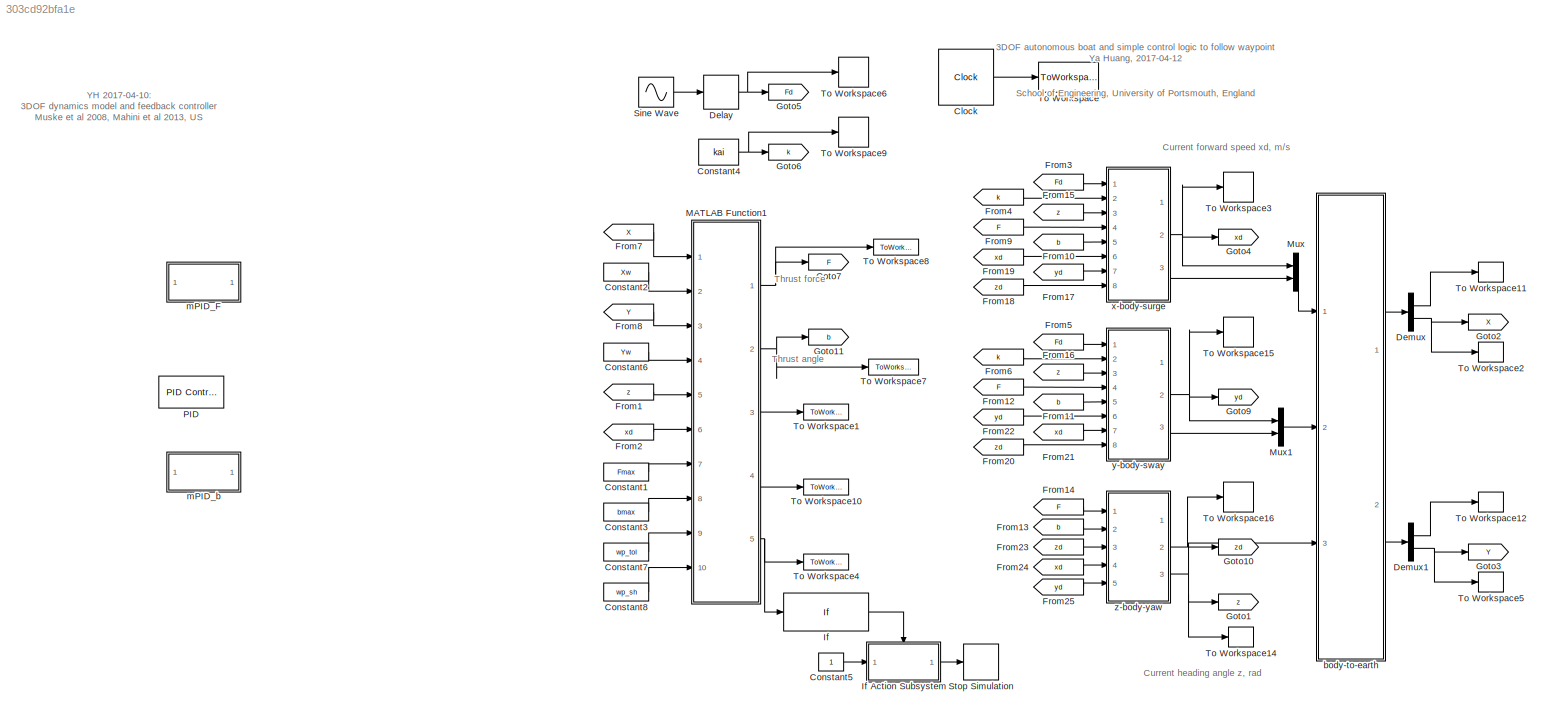
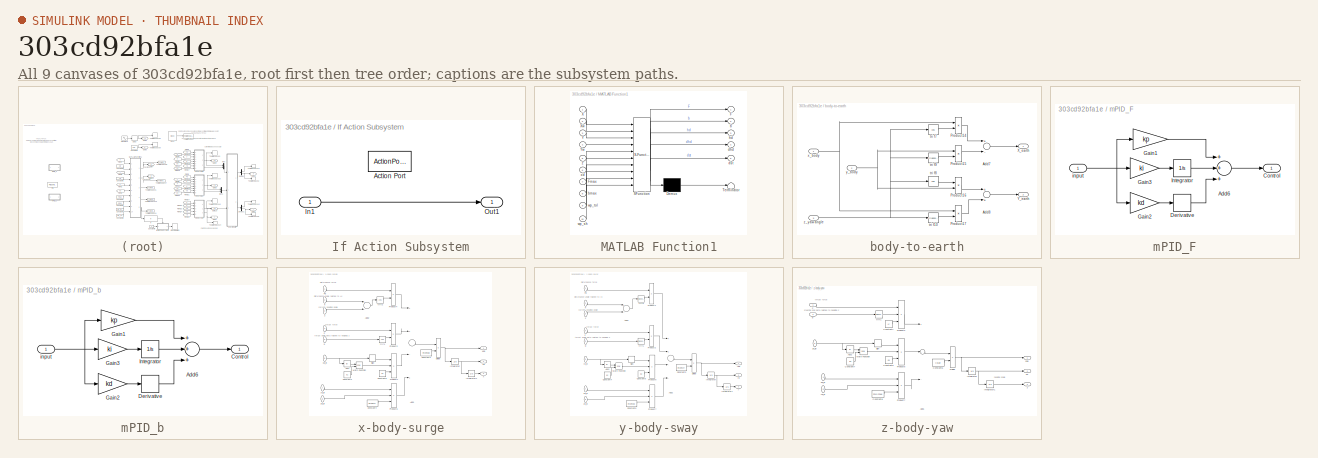
[diagram: thumbnail index - all 9 canvases of the model, root first then tree order]
MODEL slx_303cd92bfa1e
KIND model
CONFIG AbsTol = auto
CONFIG FixedStep = 0.01
CONFIG MaxStep = auto
CONFIG MinStep = auto
CONFIG RelTol = 1e-3
CONFIG SampleTimeConstraint = Unconstrained
CONFIG Solver = ode4
CONFIG SolverMode = Auto
CONFIG SolverName = ode4
CONFIG StartTime = 0.0
CONFIG StopTime = 20
BLOCK [Clock] Clock
  DisplayTime = on
BLOCK [Constant] Constant1
  Value = Fmax
  VectorParams1D = off
BLOCK [Constant] Constant2
  Value = Xw
  VectorParams1D = off
BLOCK [Constant] Constant3
  Value = bmax
  VectorParams1D = off
BLOCK [Constant] Constant4
  Value = kai
BLOCK [Constant] Constant5
  VectorParams1D = off
BLOCK [Constant] Constant6
  Value = Yw
  VectorParams1D = off
BLOCK [Constant] Constant7
  Value = wp_tol
  VectorParams1D = off
BLOCK [Constant] Constant8
  Value = wp_sh
  VectorParams1D = off
BLOCK [Delay] Delay
  DelayLength = td/fixedstep
  InitialCondition = 0
  InputPortMap = u0
  Ports = [1, 1]
BLOCK [Demux] Demux
  DisplayOption = bar
  Outputs = 2
  Ports = [1, 2]
BLOCK [Demux] Demux1
  DisplayOption = bar
  Outputs = 2
  Ports = [1, 2]
BLOCK [From] From1
  GotoTag = z
BLOCK [From] From10
  GotoTag = b
BLOCK [From] From11
  GotoTag = b
BLOCK [From] From12
  GotoTag = F
BLOCK [From] From13
  GotoTag = b
BLOCK [From] From14
  GotoTag = F
BLOCK [From] From15
  GotoTag = z
BLOCK [From] From16
  GotoTag = z
BLOCK [From] From17
  GotoTag = yd
BLOCK [From] From18
  GotoTag = zd
BLOCK [From] From19
  GotoTag = xd
BLOCK [From] From2
  GotoTag = xd
BLOCK [From] From20
  GotoTag = zd
BLOCK [From] From21
  GotoTag = xd
BLOCK [From] From22
  GotoTag = yd
BLOCK [From] From23
  GotoTag = zd
BLOCK [From] From24
  GotoTag = xd
BLOCK [From] From25
  GotoTag = yd
BLOCK [From] From3
  GotoTag = Fd
BLOCK [From] From4
  GotoTag = k
BLOCK [From] From5
  GotoTag = Fd
BLOCK [From] From6
  GotoTag = k
BLOCK [From] From7
  GotoTag = X
BLOCK [From] From8
  GotoTag = Y
BLOCK [From] From9
  GotoTag = F
BLOCK [Goto] Goto1
  GotoTag = z
BLOCK [Goto] Goto10
  GotoTag = zd
BLOCK [Goto] Goto11
  GotoTag = b
BLOCK [Goto] Goto2
  GotoTag = X
BLOCK [Goto] Goto3
  GotoTag = Y
BLOCK [Goto] Goto4
  GotoTag = xd
BLOCK [Goto] Goto5
  GotoTag = Fd
BLOCK [Goto] Goto6
  GotoTag = k
BLOCK [Goto] Goto7
  GotoTag = F
BLOCK [Goto] Goto9
  GotoTag = yd
BLOCK [If] If
  IfExpression = u1 <= 2.5
  Ports = [1, 1]
  ShowElse = off
BLOCK [SubSystem] If Action Subsystem
  Ports = [1, 1, 0, 0, 0, 0, 0, 1]
  RequestExecContextInheritance = off
  TreatAsAtomicUnit = on
  Variant = off
BLOCK [ActionPort] If Action Subsystem/Action Port
  ActionType = then
BLOCK [Inport] If Action Subsystem/In1
  IconDisplay = Port number
BLOCK [Outport] If Action Subsystem/Out1
  IconDisplay = Port number
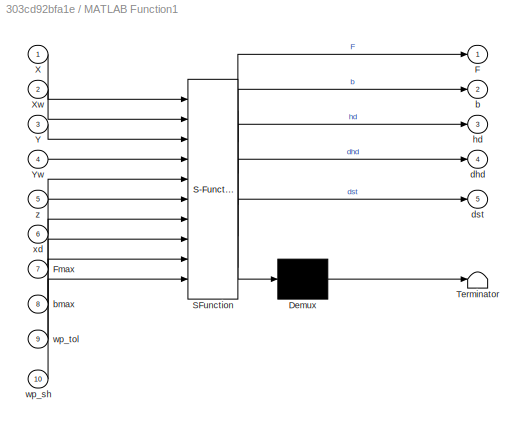
BLOCK [SubSystem] MATLAB Function1
  ErrorFcn = Stateflow.Translate.translate
  PermitHierarchicalResolution = ExplicitOnly
  Ports = [10, 5]
  RequestExecContextInheritance = off
  SFBlockType = MATLAB Function
  TreatAsAtomicUnit = on
  Variant = off
BLOCK [Demux] MATLAB Function1/ Demux 
  Outputs = 1
  Ports = [1, 1]
BLOCK [S-Function] MATLAB Function1/ SFunction 
  EnableBusSupport = on
  FunctionName = sf_sfun
  PortCounts = [10 6]
  Ports = [10, 6]
  SFunctionDeploymentMode = off
  Tag = Stateflow S-Function boatx006_3 2
BLOCK [Terminator] MATLAB Function1/ Terminator 
BLOCK [Outport] MATLAB Function1/F
  IconDisplay = Port number
BLOCK [Inport] MATLAB Function1/Fmax
  IconDisplay = Port number
  Port = 7
BLOCK [Inport] MATLAB Function1/X
  IconDisplay = Port number
BLOCK [Inport] MATLAB Function1/Xw
  IconDisplay = Port number
  Port = 2
BLOCK [Inport] MATLAB Function1/Y
  IconDisplay = Port number
  Port = 3
BLOCK [Inport] MATLAB Function1/Yw
  IconDisplay = Port number
  Port = 4
BLOCK [Outport] MATLAB Function1/b
  IconDisplay = Port number
  Port = 2
BLOCK [Inport] MATLAB Function1/bmax
  IconDisplay = Port number
  Port = 8
BLOCK [Outport] MATLAB Function1/dhd
  IconDisplay = Port number
  Port = 4
BLOCK [Outport] MATLAB Function1/dst
  IconDisplay = Port number
  Port = 5
BLOCK [Outport] MATLAB Function1/hd
  IconDisplay = Port number
  Port = 3
BLOCK [Inport] MATLAB Function1/wp_sh
  IconDisplay = Port number
  Port = 10
BLOCK [Inport] MATLAB Function1/wp_tol
  IconDisplay = Port number
  Port = 9
BLOCK [Inport] MATLAB Function1/xd
  IconDisplay = Port number
  Port = 6
BLOCK [Inport] MATLAB Function1/z
  IconDisplay = Port number
  Port = 5
BLOCK [Mux] Mux
  DisplayOption = bar
  Inputs = 2
  Ports = [2, 1]
BLOCK [Mux] Mux1
  DisplayOption = bar
  Inputs = 2
  Ports = [2, 1]
BLOCK [Reference] PID  REF=simulink/Continuous/PID Controller
  Ports = [1, 1]
  SourceBlock = simulink/Continuous/PID Controller
  SourceType = PID 1dof
BLOCK [Sin] Sine Wave
  Amplitude = A
  Bias = B
  Frequency = wd
  Ports = [0, 1]
  SampleTime = 0
BLOCK [Stop] Stop Simulation
BLOCK [ToWorkspace] To Workspace
  FixptAsFi = on
  MaxDataPoints = inf
  Ports = [1]
  SampleTime = -1
  Save2DSignal = 3-D array (concatenate along third dimension)
  SaveFormat = Timeseries
  VariableName = t
BLOCK [ToWorkspace] To Workspace1
  FixptAsFi = on
  MaxDataPoints = inf
  Ports = [1]
  SampleTime = -1
  Save2DSignal = 3-D array (concatenate along third dimension)
  SaveFormat = Timeseries
  VariableName = z_dm
BLOCK [ToWorkspace] To Workspace10
  FixptAsFi = on
  MaxDataPoints = inf
  Ports = [1]
  SampleTime = -1
  Save2DSignal = 3-D array (concatenate along third dimension)
  SaveFormat = Timeseries
  VariableName = dhd
BLOCK [ToWorkspace] To Workspace11
  FixptAsFi = on
  MaxDataPoints = inf
  Ports = [1]
  SampleTime = -1
  Save2DSignal = 3-D array (concatenate along third dimension)
  SaveFormat = Timeseries
  VariableName = Xd
BLOCK [ToWorkspace] To Workspace12
  FixptAsFi = on
  MaxDataPoints = inf
  Ports = [1]
  SampleTime = -1
  Save2DSignal = 3-D array (concatenate along third dimension)
  SaveFormat = Timeseries
  VariableName = Yd
BLOCK [ToWorkspace] To Workspace14
  FixptAsFi = on
  MaxDataPoints = inf
  Ports = [1]
  SampleTime = -1
  Save2DSignal = 3-D array (concatenate along third dimension)
  SaveFormat = Timeseries
  VariableName = z
BLOCK [ToWorkspace] To Workspace15
  FixptAsFi = on
  MaxDataPoints = inf
  Ports = [1]
  SampleTime = -1
  Save2DSignal = 3-D array (concatenate along third dimension)
  SaveFormat = Timeseries
  VariableName = yd
BLOCK [ToWorkspace] To Workspace16
  FixptAsFi = on
  MaxDataPoints = inf
  Ports = [1]
  SampleTime = -1
  Save2DSignal = 3-D array (concatenate along third dimension)
  SaveFormat = Timeseries
  VariableName = zd
BLOCK [ToWorkspace] To Workspace2
  FixptAsFi = on
  MaxDataPoints = inf
  Ports = [1]
  SampleTime = -1
  Save2DSignal = 3-D array (concatenate along third dimension)
  SaveFormat = Timeseries
  VariableName = X
BLOCK [ToWorkspace] To Workspace3
  FixptAsFi = on
  MaxDataPoints = inf
  Ports = [1]
  SampleTime = -1
  Save2DSignal = 3-D array (concatenate along third dimension)
  SaveFormat = Timeseries
  VariableName = xd
BLOCK [ToWorkspace] To Workspace4
  FixptAsFi = on
  MaxDataPoints = inf
  Ports = [1]
  SampleTime = -1
  Save2DSignal = 3-D array (concatenate along third dimension)
  SaveFormat = Timeseries
  VariableName = dst
BLOCK [ToWorkspace] To Workspace5
  FixptAsFi = on
  MaxDataPoints = inf
  Ports = [1]
  SampleTime = -1
  Save2DSignal = 3-D array (concatenate along third dimension)
  SaveFormat = Timeseries
  VariableName = Y
BLOCK [ToWorkspace] To Workspace6
  FixptAsFi = on
  MaxDataPoints = inf
  Ports = [1]
  SampleTime = -1
  Save2DSignal = 3-D array (concatenate along third dimension)
  SaveFormat = Timeseries
  VariableName = Fd
BLOCK [ToWorkspace] To Workspace7
  FixptAsFi = on
  MaxDataPoints = inf
  Ports = [1]
  SampleTime = -1
  Save2DSignal = 3-D array (concatenate along third dimension)
  SaveFormat = Timeseries
  VariableName = b
BLOCK [ToWorkspace] To Workspace8
  FixptAsFi = on
  MaxDataPoints = inf
  Ports = [1]
  SampleTime = -1
  Save2DSignal = 3-D array (concatenate along third dimension)
  SaveFormat = Timeseries
  VariableName = F
BLOCK [ToWorkspace] To Workspace9
  FixptAsFi = on
  MaxDataPoints = inf
  Ports = [1]
  SampleTime = -1
  Save2DSignal = 3-D array (concatenate along third dimension)
  SaveFormat = Timeseries
  VariableName = k
BLOCK [SubSystem] body-to-earth
  Ports = [3, 2]
  RequestExecContextInheritance = off
  Variant = off
BLOCK [Sum] body-to-earth/Add7
  InputSameDT = off
  Inputs = +-
  OutDataTypeStr = Inherit: Inherit via internal rule
  Ports = [2, 1]
  SaturateOnIntegerOverflow = off
BLOCK [Sum] body-to-earth/Add8
  InputSameDT = off
  OutDataTypeStr = Inherit: Inherit via internal rule
  Ports = [2, 1]
  SaturateOnIntegerOverflow = off
BLOCK [Product] body-to-earth/Product14
  InputSameDT = off
  OutDataTypeStr = Inherit: Inherit via internal rule
  Ports = [2, 1]
  RndMeth = Floor
  SaturateOnIntegerOverflow = off
BLOCK [Product] body-to-earth/Product15
  InputSameDT = off
  OutDataTypeStr = Inherit: Inherit via internal rule
  Ports = [2, 1]
  RndMeth = Floor
  SaturateOnIntegerOverflow = off
BLOCK [Product] body-to-earth/Product16
  InputSameDT = off
  OutDataTypeStr = Inherit: Inherit via internal rule
  Ports = [2, 1]
  RndMeth = Floor
  SaturateOnIntegerOverflow = off
BLOCK [Product] body-to-earth/Product17
  InputSameDT = off
  OutDataTypeStr = Inherit: Inherit via internal rule
  Ports = [2, 1]
  RndMeth = Floor
  SaturateOnIntegerOverflow = off
BLOCK [Outport] body-to-earth/X_earth
  IconDisplay = Port number
BLOCK [Outport] body-to-earth/Y_earth
  IconDisplay = Port number
  Port = 2
BLOCK [Trigonometry] body-to-earth/tri f10
  Ports = [1, 1]
BLOCK [Trigonometry] body-to-earth/tri f7
  Operator = cos
  Ports = [1, 1]
BLOCK [Trigonometry] body-to-earth/tri f8
  Operator = cos
  Ports = [1, 1]
BLOCK [Trigonometry] body-to-earth/tri f9
  Ports = [1, 1]
BLOCK [Inport] body-to-earth/x_body
  IconDisplay = Port number
BLOCK [Inport] body-to-earth/y_body
  IconDisplay = Port number
  Port = 2
BLOCK [Inport] body-to-earth/z_yaw angle
  IconDisplay = Port number
  Port = 3
BLOCK [SubSystem] mPID_F
  Commented = through
  Ports = [1, 1]
  RequestExecContextInheritance = off
  Variant = off
BLOCK [Sum] mPID_F/Add6
  InputSameDT = off
  Inputs = +++
  OutDataTypeStr = Inherit: Inherit via internal rule
  Ports = [3, 1]
  SaturateOnIntegerOverflow = off
BLOCK [Outport] mPID_F/Control
  IconDisplay = Port number
BLOCK [Derivative] mPID_F/Derivative
BLOCK [Gain] mPID_F/Gain1
  Gain = kp
  OutDataTypeStr = Inherit: Inherit via internal rule
  ParamDataTypeStr = Inherit: Inherit via internal rule
  SaturateOnIntegerOverflow = off
BLOCK [Gain] mPID_F/Gain2
  Gain = kd
  OutDataTypeStr = Inherit: Inherit via internal rule
  ParamDataTypeStr = Inherit: Inherit via internal rule
  SaturateOnIntegerOverflow = off
BLOCK [Gain] mPID_F/Gain3
  Gain = ki
  OutDataTypeStr = Inherit: Inherit via internal rule
  ParamDataTypeStr = Inherit: Inherit via internal rule
  SaturateOnIntegerOverflow = off
BLOCK [Integrator] mPID_F/Integrator
  Ports = [1, 1]
BLOCK [Inport] mPID_F/input
  IconDisplay = Port number
BLOCK [SubSystem] mPID_b
  Commented = through
  Ports = [1, 1]
  RequestExecContextInheritance = off
  Variant = off
BLOCK [Sum] mPID_b/Add6
  InputSameDT = off
  Inputs = +++
  OutDataTypeStr = Inherit: Inherit via internal rule
  Ports = [3, 1]
  SaturateOnIntegerOverflow = off
BLOCK [Outport] mPID_b/Control
  IconDisplay = Port number
BLOCK [Derivative] mPID_b/Derivative
BLOCK [Gain] mPID_b/Gain1
  Gain = kp
  OutDataTypeStr = Inherit: Inherit via internal rule
  ParamDataTypeStr = Inherit: Inherit via internal rule
  SaturateOnIntegerOverflow = off
BLOCK [Gain] mPID_b/Gain2
  Gain = kd
  OutDataTypeStr = Inherit: Inherit via internal rule
  ParamDataTypeStr = Inherit: Inherit via internal rule
  SaturateOnIntegerOverflow = off
BLOCK [Gain] mPID_b/Gain3
  Gain = ki
  OutDataTypeStr = Inherit: Inherit via internal rule
  ParamDataTypeStr = Inherit: Inherit via internal rule
  SaturateOnIntegerOverflow = off
BLOCK [Integrator] mPID_b/Integrator
  Ports = [1, 1]
BLOCK [Inport] mPID_b/input
  IconDisplay = Port number
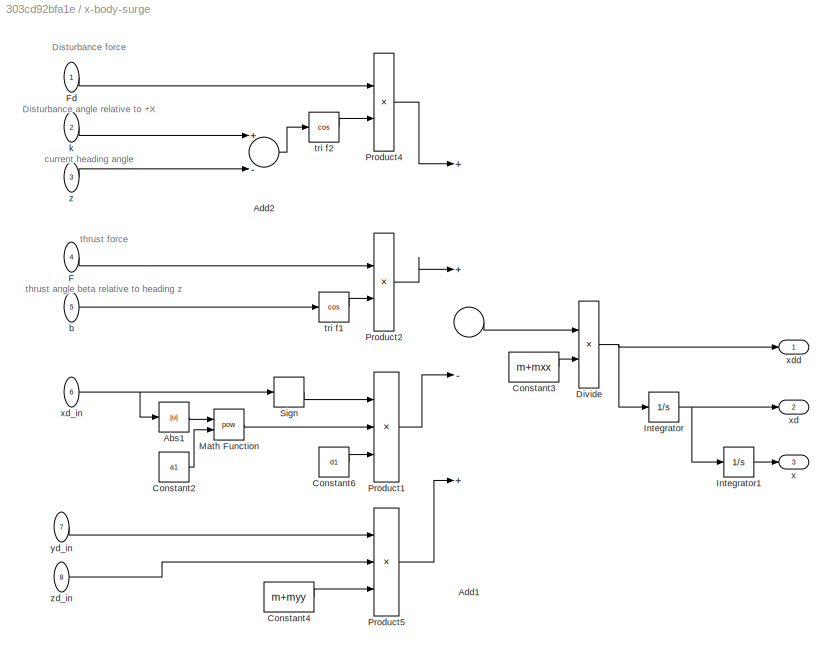
BLOCK [SubSystem] x-body-surge
  Ports = [8, 3]
  RequestExecContextInheritance = off
  Variant = off
BLOCK [Abs] x-body-surge/Abs1
  SaturateOnIntegerOverflow = off
BLOCK [Sum] x-body-surge/Add1
  InputSameDT = off
  Inputs = ++-+
  OutDataTypeStr = Inherit: Inherit via internal rule
  Ports = [4, 1]
  SaturateOnIntegerOverflow = off
BLOCK [Sum] x-body-surge/Add2
  InputSameDT = off
  Inputs = +-
  OutDataTypeStr = Inherit: Inherit via internal rule
  Ports = [2, 1]
  SaturateOnIntegerOverflow = off
BLOCK [Constant] x-body-surge/Constant2
  Value = a1
BLOCK [Constant] x-body-surge/Constant3
  Value = m+mxx
  VectorParams1D = off
BLOCK [Constant] x-body-surge/Constant4
  Value = m+myy
  VectorParams1D = off
BLOCK [Constant] x-body-surge/Constant6
  Value = d1
BLOCK [Product] x-body-surge/Divide
  InputSameDT = off
  Inputs = */
  OutDataTypeStr = Inherit: Inherit via internal rule
  Ports = [2, 1]
  RndMeth = Floor
  SaturateOnIntegerOverflow = off
BLOCK [Inport] x-body-surge/F
  IconDisplay = Port number
  Port = 4
BLOCK [Inport] x-body-surge/Fd
  IconDisplay = Port number
BLOCK [Integrator] x-body-surge/Integrator
  Ports = [1, 1]
BLOCK [Integrator] x-body-surge/Integrator1
  Ports = [1, 1]
BLOCK [Math] x-body-surge/Math Function
  Operator = pow
  Ports = [2, 1]
BLOCK [Product] x-body-surge/Product1
  InputSameDT = off
  Inputs = 3
  OutDataTypeStr = Inherit: Inherit via internal rule
  Ports = [3, 1]
  RndMeth = Floor
  SaturateOnIntegerOverflow = off
BLOCK [Product] x-body-surge/Product2
  InputSameDT = off
  OutDataTypeStr = Inherit: Inherit via internal rule
  Ports = [2, 1]
  RndMeth = Floor
  SaturateOnIntegerOverflow = off
BLOCK [Product] x-body-surge/Product4
  InputSameDT = off
  OutDataTypeStr = Inherit: Inherit via internal rule
  Ports = [2, 1]
  RndMeth = Floor
  SaturateOnIntegerOverflow = off
BLOCK [Product] x-body-surge/Product5
  InputSameDT = off
  Inputs = 3
  OutDataTypeStr = Inherit: Inherit via internal rule
  Ports = [3, 1]
  RndMeth = Floor
  SaturateOnIntegerOverflow = off
BLOCK [Signum] x-body-surge/Sign
BLOCK [Inport] x-body-surge/b
  IconDisplay = Port number
  Port = 5
BLOCK [Inport] x-body-surge/k
  IconDisplay = Port number
  Port = 2
BLOCK [Trigonometry] x-body-surge/tri f1
  Operator = cos
  Ports = [1, 1]
BLOCK [Trigonometry] x-body-surge/tri f2
  Operator = cos
  Ports = [1, 1]
BLOCK [Outport] x-body-surge/x
  IconDisplay = Port number
  Port = 3
BLOCK [Outport] x-body-surge/xd
  IconDisplay = Port number
  Port = 2
BLOCK [Inport] x-body-surge/xd_in
  IconDisplay = Port number
  Port = 6
BLOCK [Outport] x-body-surge/xdd
  IconDisplay = Port number
BLOCK [Inport] x-body-surge/yd_in
  IconDisplay = Port number
  Port = 7
BLOCK [Inport] x-body-surge/z
  IconDisplay = Port number
  Port = 3
BLOCK [Inport] x-body-surge/zd_in
  IconDisplay = Port number
  Port = 8
BLOCK [SubSystem] y-body-sway
  Ports = [8, 3]
  RequestExecContextInheritance = off
  Variant = off
BLOCK [Abs] y-body-sway/Abs2
  SaturateOnIntegerOverflow = off
BLOCK [Sum] y-body-sway/Add2
  InputSameDT = off
  Inputs = ++--
  OutDataTypeStr = Inherit: Inherit via internal rule
  Ports = [4, 1]
  SaturateOnIntegerOverflow = off
BLOCK [Sum] y-body-sway/Add3
  InputSameDT = off
  Inputs = +-
  OutDataTypeStr = Inherit: Inherit via internal rule
  Ports = [2, 1]
  SaturateOnIntegerOverflow = off
BLOCK [Constant] y-body-sway/Constant3
  Value = m+myy
  VectorParams1D = off
BLOCK [Constant] y-body-sway/Constant4
  Value = a2
BLOCK [Constant] y-body-sway/Constant5
  Value = m+mxx
  VectorParams1D = off
BLOCK [Constant] y-body-sway/Constant6
  Value = d2
BLOCK [Product] y-body-sway/Divide
  InputSameDT = off
  Inputs = */
  OutDataTypeStr = Inherit: Inherit via internal rule
  Ports = [2, 1]
  RndMeth = Floor
  SaturateOnIntegerOverflow = off
BLOCK [Inport] y-body-sway/F
  IconDisplay = Port number
  Port = 4
BLOCK [Inport] y-body-sway/Fd
  IconDisplay = Port number
BLOCK [Integrator] y-body-sway/Integrator
  Ports = [1, 1]
BLOCK [Integrator] y-body-sway/Integrator1
  Ports = [1, 1]
BLOCK [Math] y-body-sway/Math Function
  Operator = pow
  Ports = [2, 1]
BLOCK [Product] y-body-sway/Product2
  InputSameDT = off
  OutDataTypeStr = Inherit: Inherit via internal rule
  Ports = [2, 1]
  RndMeth = Floor
  SaturateOnIntegerOverflow = off
BLOCK [Product] y-body-sway/Product4
  InputSameDT = off
  OutDataTypeStr = Inherit: Inherit via internal rule
  Ports = [2, 1]
  RndMeth = Floor
  SaturateOnIntegerOverflow = off
BLOCK [Product] y-body-sway/Product6
  InputSameDT = off
  Inputs = 3
  OutDataTypeStr = Inherit: Inherit via internal rule
  Ports = [3, 1]
  RndMeth = Floor
  SaturateOnIntegerOverflow = off
BLOCK [Product] y-body-sway/Product7
  InputSameDT = off
  Inputs = 3
  OutDataTypeStr = Inherit: Inherit via internal rule
  Ports = [3, 1]
  RndMeth = Floor
  SaturateOnIntegerOverflow = off
BLOCK [Signum] y-body-sway/Sign
BLOCK [Inport] y-body-sway/b
  IconDisplay = Port number
  Port = 5
BLOCK [Inport] y-body-sway/k
  IconDisplay = Port number
  Port = 2
BLOCK [Trigonometry] y-body-sway/tri f1
  Ports = [1, 1]
BLOCK [Trigonometry] y-body-sway/tri f2
  Ports = [1, 1]
BLOCK [Inport] y-body-sway/xd_in
  IconDisplay = Port number
  Port = 7
BLOCK [Outport] y-body-sway/y
  IconDisplay = Port number
  Port = 3
BLOCK [Outport] y-body-sway/yd
  IconDisplay = Port number
  Port = 2
BLOCK [Inport] y-body-sway/yd_in
  IconDisplay = Port number
  Port = 6
BLOCK [Outport] y-body-sway/ydd
  IconDisplay = Port number
BLOCK [Inport] y-body-sway/z
  IconDisplay = Port number
  Port = 3
BLOCK [Inport] y-body-sway/zd_in
  IconDisplay = Port number
  Port = 8
BLOCK [SubSystem] z-body-yaw
  Ports = [5, 3]
  RequestExecContextInheritance = off
  Variant = off
BLOCK [Abs] z-body-yaw/Abs2
  SaturateOnIntegerOverflow = off
BLOCK [Sum] z-body-yaw/Add1
  InputSameDT = off
  Inputs = +--
  OutDataTypeStr = Inherit: Inherit via internal rule
  Ports = [3, 1]
  SaturateOnIntegerOverflow = off
BLOCK [Constant] z-body-yaw/Constant1
  Value = Lt
BLOCK [Constant] z-body-yaw/Constant6
  Value = I+Izz
  VectorParams1D = off
BLOCK [Constant] z-body-yaw/Constant7
  Value = a3
BLOCK [Constant] z-body-yaw/Constant8
  Value = myy-mxx
  VectorParams1D = off
BLOCK [Constant] z-body-yaw/Constant9
  Value = d3
BLOCK [Product] z-body-yaw/Divide
  InputSameDT = off
  Inputs = */
  OutDataTypeStr = Inherit: Inherit via internal rule
  Ports = [2, 1]
  RndMeth = Floor
  SaturateOnIntegerOverflow = off
BLOCK [Inport] z-body-yaw/F
  IconDisplay = Port number
BLOCK [Integrator] z-body-yaw/Integrator
  Ports = [1, 1]
BLOCK [Integrator] z-body-yaw/Integrator1
  Ports = [1, 1]
BLOCK [Math] z-body-yaw/Math Function
  Operator = pow
  Ports = [2, 1]
BLOCK [Product] z-body-yaw/Product2
  InputSameDT = off
  Inputs = 3
  OutDataTypeStr = Inherit: Inherit via internal rule
  Ports = [3, 1]
  RndMeth = Floor
  SaturateOnIntegerOverflow = off
BLOCK [Product] z-body-yaw/Product6
  InputSameDT = off
  Inputs = 3
  OutDataTypeStr = Inherit: Inherit via internal rule
  Ports = [3, 1]
  RndMeth = Floor
  SaturateOnIntegerOverflow = off
BLOCK [Product] z-body-yaw/Product7
  InputSameDT = off
  Inputs = 3
  OutDataTypeStr = Inherit: Inherit via internal rule
  Ports = [3, 1]
  RndMeth = Floor
  SaturateOnIntegerOverflow = off
BLOCK [Signum] z-body-yaw/Sign
BLOCK [Inport] z-body-yaw/b
  IconDisplay = Port number
  Port = 2
BLOCK [Trigonometry] z-body-yaw/tri f1
  Ports = [1, 1]
BLOCK [Inport] z-body-yaw/xd_in
  IconDisplay = Port number
  Port = 4
BLOCK [Inport] z-body-yaw/yd_in
  IconDisplay = Port number
  Port = 5
BLOCK [Outport] z-body-yaw/z
  IconDisplay = Port number
  Port = 3
BLOCK [Outport] z-body-yaw/zd
  IconDisplay = Port number
  Port = 2
BLOCK [Inport] z-body-yaw/zd_in
  IconDisplay = Port number
  Port = 3
BLOCK [Outport] z-body-yaw/zdd
  IconDisplay = Port number
ANNOTATION (root): 3DOF autonomous boat and simple control logic to follow waypoint Ya Huang, 2017-04-12 School of Engineering, University of Portsmouth, England
ANNOTATION (root): YH 2017-04-10: 3DOF dynamics model and feedback controller Muske et al 2008, Mahini et al 2013, US
ANNOTATION (root): Current forward speed xd, m/s
ANNOTATION (root): Current heading angle z, rad
ANNOTATION (root): Thrust angle
ANNOTATION (root): Thrust force
ANNOTATION x-body-surge: Disturbance angle relative to +X
ANNOTATION x-body-surge: Disturbance force
ANNOTATION x-body-surge: current heading angle
ANNOTATION x-body-surge: thrust angle beta relative to heading z
ANNOTATION x-body-surge: thrust force
ANNOTATION y-body-sway: Disturbance force
ANNOTATION y-body-sway: current heading angle
ANNOTATION y-body-sway: disturbance angle relative to +X
ANNOTATION y-body-sway: thrust angle beta relative to heading z
ANNOTATION y-body-sway: thrust force
ANNOTATION z-body-yaw: heading angle
ANNOTATION z-body-yaw: steering ang beta relative to heading z
ANNOTATION z-body-yaw: thrust force
LINE Clock:1 -> To Workspace:1
LINE Constant1:1 -> MATLAB Function1:7
LINE Constant2:1 -> MATLAB Function1:2
LINE Constant3:1 -> MATLAB Function1:8
NET Constant4:1 -> Goto6:1, To Workspace9:1
LINE Constant5:1 -> If Action Subsystem:1
LINE Constant6:1 -> MATLAB Function1:4
LINE Constant7:1 -> MATLAB Function1:9
LINE Constant8:1 -> MATLAB Function1:10
NET Delay:1 -> Goto5:1, To Workspace6:1
LINE Demux1:1 -> To Workspace12:1
NET Demux1:2 -> Goto3:1, To Workspace5:1
LINE Demux:1 -> To Workspace11:1
NET Demux:2 -> Goto2:1, To Workspace2:1
LINE From10:1 -> x-body-surge:5
LINE From11:1 -> y-body-sway:5
LINE From12:1 -> y-body-sway:4
LINE From13:1 -> z-body-yaw:2
LINE From14:1 -> z-body-yaw:1
LINE From15:1 -> x-body-surge:3
LINE From16:1 -> y-body-sway:3
LINE From17:1 -> x-body-surge:7
LINE From18:1 -> x-body-surge:8
LINE From19:1 -> x-body-surge:6
LINE From1:1 -> MATLAB Function1:5
LINE From20:1 -> y-body-sway:8
LINE From21:1 -> y-body-sway:7
LINE From22:1 -> y-body-sway:6
LINE From23:1 -> z-body-yaw:3
LINE From24:1 -> z-body-yaw:4
LINE From25:1 -> z-body-yaw:5
LINE From2:1 -> MATLAB Function1:6
LINE From3:1 -> x-body-surge:1
LINE From4:1 -> x-body-surge:2
LINE From5:1 -> y-body-sway:1
LINE From6:1 -> y-body-sway:2
LINE From7:1 -> MATLAB Function1:1
LINE From8:1 -> MATLAB Function1:3
LINE From9:1 -> x-body-surge:4
LINE If Action Subsystem/In1:1 -> If Action Subsystem/Out1:1
LINE If Action Subsystem:1 -> Stop Simulation:1
LINE If:1 -> If Action Subsystem:ifaction
NET MATLAB Function1:1 -> Goto7:1, To Workspace8:1
NET MATLAB Function1:2 -> Goto11:1, To Workspace7:1
LINE MATLAB Function1:3 -> To Workspace1:1
LINE MATLAB Function1:4 -> To Workspace10:1
NET MATLAB Function1:5 -> If:1, To Workspace4:1
LINE Mux1:1 -> body-to-earth:2
LINE Mux:1 -> body-to-earth:1
LINE Sine Wave:1 -> Delay:1
LINE body-to-earth/Add7:1 -> body-to-earth/X_earth:1
LINE body-to-earth/Add8:1 -> body-to-earth/Y_earth:1
LINE body-to-earth/Product14:1 -> body-to-earth/Add7:1
LINE body-to-earth/Product15:1 -> body-to-earth/Add7:2
LINE body-to-earth/Product16:1 -> body-to-earth/Add8:1
LINE body-to-earth/Product17:1 -> body-to-earth/Add8:2
LINE body-to-earth/tri f10:1 -> body-to-earth/Product17:2
LINE body-to-earth/tri f7:1 -> body-to-earth/Product14:2
LINE body-to-earth/tri f8:1 -> body-to-earth/Product16:1
LINE body-to-earth/tri f9:1 -> body-to-earth/Product15:2
NET body-to-earth/x_body:1 -> body-to-earth/Product14:1, body-to-earth/Product17:1
NET body-to-earth/y_body:1 -> body-to-earth/Product15:1, body-to-earth/Product16:2
NET body-to-earth/z_yaw angle:1 -> body-to-earth/tri f10:1, body-to-earth/tri f7:1, body-to-earth/tri f8:1, body-to-earth/tri f9:1
LINE body-to-earth:1 -> Demux:1
LINE body-to-earth:2 -> Demux1:1
LINE mPID_F/Add6:1 -> mPID_F/Control:1
LINE mPID_F/Derivative:1 -> mPID_F/Add6:3
LINE mPID_F/Gain1:1 -> mPID_F/Add6:1
LINE mPID_F/Gain2:1 -> mPID_F/Derivative:1
LINE mPID_F/Gain3:1 -> mPID_F/Integrator:1
LINE mPID_F/Integrator:1 -> mPID_F/Add6:2
NET mPID_F/input:1 -> mPID_F/Gain1:1, mPID_F/Gain2:1, mPID_F/Gain3:1
LINE mPID_b/Add6:1 -> mPID_b/Control:1
LINE mPID_b/Derivative:1 -> mPID_b/Add6:3
LINE mPID_b/Gain1:1 -> mPID_b/Add6:1
LINE mPID_b/Gain2:1 -> mPID_b/Derivative:1
LINE mPID_b/Gain3:1 -> mPID_b/Integrator:1
LINE mPID_b/Integrator:1 -> mPID_b/Add6:2
NET mPID_b/input:1 -> mPID_b/Gain1:1, mPID_b/Gain2:1, mPID_b/Gain3:1
LINE x-body-surge/Abs1:1 -> x-body-surge/Math Function:1
LINE x-body-surge/Add1:1 -> x-body-surge/Divide:1
LINE x-body-surge/Add2:1 -> x-body-surge/tri f2:1
LINE x-body-surge/Constant2:1 -> x-body-surge/Math Function:2
LINE x-body-surge/Constant3:1 -> x-body-surge/Divide:2
LINE x-body-surge/Constant4:1 -> x-body-surge/Product5:3
LINE x-body-surge/Constant6:1 -> x-body-surge/Product1:3
NET x-body-surge/Divide:1 -> x-body-surge/Integrator:1, x-body-surge/xdd:1
LINE x-body-surge/F:1 -> x-body-surge/Product2:1
LINE x-body-surge/Fd:1 -> x-body-surge/Product4:1
LINE x-body-surge/Integrator1:1 -> x-body-surge/x:1
NET x-body-surge/Integrator:1 -> x-body-surge/Integrator1:1, x-body-surge/xd:1
LINE x-body-surge/Math Function:1 -> x-body-surge/Product1:2
LINE x-body-surge/Product1:1 -> x-body-surge/Add1:3
LINE x-body-surge/Product2:1 -> x-body-surge/Add1:2
LINE x-body-surge/Product4:1 -> x-body-surge/Add1:1
LINE x-body-surge/Product5:1 -> x-body-surge/Add1:4
LINE x-body-surge/Sign:1 -> x-body-surge/Product1:1
LINE x-body-surge/b:1 -> x-body-surge/tri f1:1
LINE x-body-surge/k:1 -> x-body-surge/Add2:1
LINE x-body-surge/tri f1:1 -> x-body-surge/Product2:2
LINE x-body-surge/tri f2:1 -> x-body-surge/Product4:2
NET x-body-surge/xd_in:1 -> x-body-surge/Abs1:1, x-body-surge/Sign:1
LINE x-body-surge/yd_in:1 -> x-body-surge/Product5:1
LINE x-body-surge/z:1 -> x-body-surge/Add2:2
LINE x-body-surge/zd_in:1 -> x-body-surge/Product5:2
NET x-body-surge:2 -> Goto4:1, Mux:1, To Workspace3:1
LINE x-body-surge:3 -> Mux:2
LINE y-body-sway/Abs2:1 -> y-body-sway/Math Function:1
LINE y-body-sway/Add2:1 -> y-body-sway/Divide:1
LINE y-body-sway/Add3:1 -> y-body-sway/tri f2:1
LINE y-body-sway/Constant3:1 -> y-body-sway/Divide:2
LINE y-body-sway/Constant4:1 -> y-body-sway/Math Function:2
LINE y-body-sway/Constant5:1 -> y-body-sway/Product7:3
LINE y-body-sway/Constant6:1 -> y-body-sway/Product6:3
NET y-body-sway/Divide:1 -> y-body-sway/Integrator:1, y-body-sway/ydd:1
LINE y-body-sway/F:1 -> y-body-sway/Product2:1
LINE y-body-sway/Fd:1 -> y-body-sway/Product4:1
LINE y-body-sway/Integrator1:1 -> y-body-sway/y:1
NET y-body-sway/Integrator:1 -> y-body-sway/Integrator1:1, y-body-sway/yd:1
LINE y-body-sway/Math Function:1 -> y-body-sway/Product6:2
LINE y-body-sway/Product2:1 -> y-body-sway/Add2:2
LINE y-body-sway/Product4:1 -> y-body-sway/Add2:1
LINE y-body-sway/Product6:1 -> y-body-sway/Add2:3
LINE y-body-sway/Product7:1 -> y-body-sway/Add2:4
LINE y-body-sway/Sign:1 -> y-body-sway/Product6:1
LINE y-body-sway/b:1 -> y-body-sway/tri f1:1
LINE y-body-sway/k:1 -> y-body-sway/Add3:1
LINE y-body-sway/tri f1:1 -> y-body-sway/Product2:2
LINE y-body-sway/tri f2:1 -> y-body-sway/Product4:2
LINE y-body-sway/xd_in:1 -> y-body-sway/Product7:1
NET y-body-sway/yd_in:1 -> y-body-sway/Abs2:1, y-body-sway/Sign:1
LINE y-body-sway/z:1 -> y-body-sway/Add3:2
LINE y-body-sway/zd_in:1 -> y-body-sway/Product7:2
NET y-body-sway:2 -> Goto9:1, Mux1:1, To Workspace15:1
LINE y-body-sway:3 -> Mux1:2
LINE z-body-yaw/Abs2:1 -> z-body-yaw/Math Function:1
LINE z-body-yaw/Add1:1 -> z-body-yaw/Divide:1
LINE z-body-yaw/Constant1:1 -> z-body-yaw/Product2:3
LINE z-body-yaw/Constant6:1 -> z-body-yaw/Divide:2
LINE z-body-yaw/Constant7:1 -> z-body-yaw/Math Function:2
LINE z-body-yaw/Constant8:1 -> z-body-yaw/Product7:3
LINE z-body-yaw/Constant9:1 -> z-body-yaw/Product6:3
NET z-body-yaw/Divide:1 -> z-body-yaw/Integrator:1, z-body-yaw/zdd:1
LINE z-body-yaw/F:1 -> z-body-yaw/Product2:1
LINE z-body-yaw/Integrator1:1 -> z-body-yaw/z:1
NET z-body-yaw/Integrator:1 -> z-body-yaw/Integrator1:1, z-body-yaw/zd:1
LINE z-body-yaw/Math Function:1 -> z-body-yaw/Product6:2
LINE z-body-yaw/Product2:1 -> z-body-yaw/Add1:1
LINE z-body-yaw/Product6:1 -> z-body-yaw/Add1:2
LINE z-body-yaw/Product7:1 -> z-body-yaw/Add1:3
LINE z-body-yaw/Sign:1 -> z-body-yaw/Product6:1
LINE z-body-yaw/b:1 -> z-body-yaw/tri f1:1
LINE z-body-yaw/tri f1:1 -> z-body-yaw/Product2:2
LINE z-body-yaw/xd_in:1 -> z-body-yaw/Product7:1
LINE z-body-yaw/yd_in:1 -> z-body-yaw/Product7:2
NET z-body-yaw/zd_in:1 -> z-body-yaw/Abs2:1, z-body-yaw/Sign:1
NET z-body-yaw:2 -> Goto10:1, To Workspace16:1
NET z-body-yaw:3 -> Goto1:1, To Workspace14:1, body-to-earth:3
note: NET lines group one-source signal fan-out (src -> all destinations, sorted); 1:1 wires keep LINE
CHART MATLAB Function1 states=1 transitions=1
  STATE_LABEL 'eML_blk_kernel()'
  STATE_LABEL 'SCRIPT:\nfunction [F,b,hd,dhd,dst] = nav(X,Xw,Y,Yw,z,xd,Fmax,bmax,wp_tol,wp_sh)\n% #codegen\n% Xw Yw - m, current waypoint\n% X Y - m, current position\n% z - rad, current heading\n% V - m/s, forward speed demand\n% Fmax - N, max thrust force \n% b - rad, max thruster steer angle demand\n% YH 2017-03-25\n\nXdiff = Xw - X ; % m, X position error\nYdiff = Yw - Y ;\ndst = sqrt(Xdiff^2 + Ydiff^2) ; % m, distance t...<+2350ch>'
